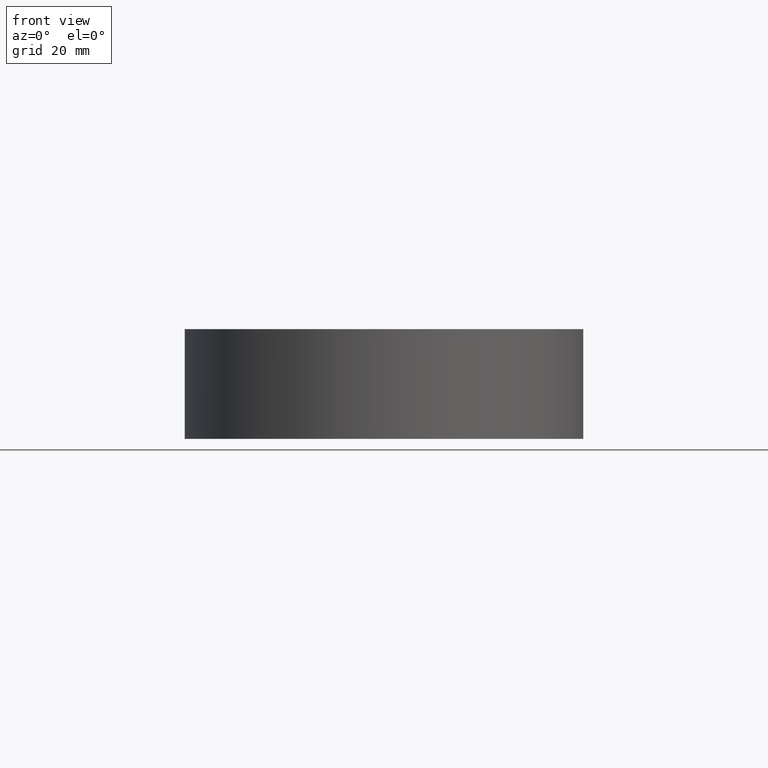
[diagram: clean part render]
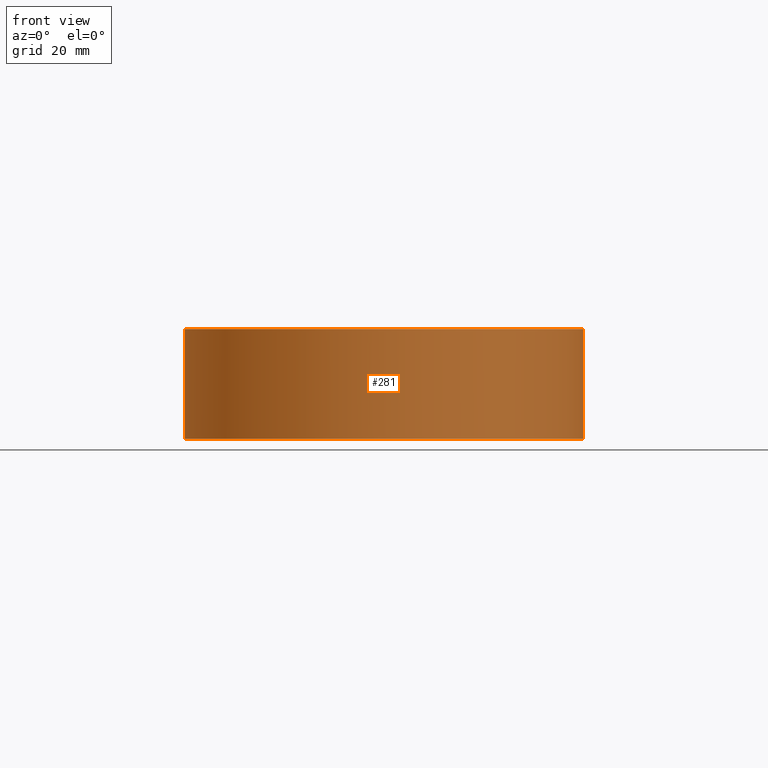
[diagram: same view with one face highlighted and labeled with its STEP entity id]
A machine part, front view. The second image highlights one B-rep face of the part: STEP entity #281.
In plain terms, the highlighted cylindrical surface (partial cylindrical patch) has radius 58.15 mm, axis along (0, 0, -1).
Its self-contained STEP definition (entity closure, byte-faithful):
#281 = ADVANCED_FACE( '', ( #416 ), #417, .T. );
#416 = FACE_OUTER_BOUND( '', #672, .T. );
#417 = CYLINDRICAL_SURFACE( '', #673, 58.1500000000000 );
#672 = EDGE_LOOP( '', ( #1016, #1017, #1018, #1019 ) );
#673 = AXIS2_PLACEMENT_3D( '', #1020, #1021, #1022 );
#1016 = ORIENTED_EDGE( '', *, *, #1866, .F. );
#1017 = ORIENTED_EDGE( '', *, *, #1871, .F. );
#1018 = ORIENTED_EDGE( '', *, *, #1832, .T. );
#1019 = ORIENTED_EDGE( '', *, *, #1872, .T. );
#1020 = CARTESIAN_POINT( '', ( 0.000000000000000, 0.000000000000000, -16.0000000000000 ) );
#1021 = DIRECTION( '', ( 0.000000000000000, 0.000000000000000, -1.00000000000000 ) );
#1022 = DIRECTION( '', ( -1.00000000000000, 6.06692130572647E-017, 0.000000000000000 ) );
#1832 = EDGE_CURVE( '', #2136, #2134, #2137, .T. );
#1866 = EDGE_CURVE( '', #2191, #2193, #2194, .T. );
#1871 = EDGE_CURVE( '', #2136, #2191, #2200, .T. );
#1872 = EDGE_CURVE( '', #2134, #2193, #2201, .T. );
#2134 = VERTEX_POINT( '', #2633 );
#2136 = VERTEX_POINT( '', #2635 );
#2137 = CIRCLE( '', #2636, 58.1500000000000 );
#2191 = VERTEX_POINT( '', #2711 );
#2193 = VERTEX_POINT( '', #2713 );
#2194 = CIRCLE( '', #2714, 58.1500000000000 );
#2200 = LINE( '', #2721, #2722 );
#2201 = LINE( '', #2723, #2724 );
#2633 = CARTESIAN_POINT( '', ( 6.39010989010989, 57.7978286408090, -16.0000000000000 ) );
#2635 = CARTESIAN_POINT( '', ( -6.39010989010987, 57.7978286408090, -16.0000000000000 ) );
#2636 = AXIS2_PLACEMENT_3D( '', #3413, #3414, #3415 );
#2711 = CARTESIAN_POINT( '', ( -6.39010989010989, 57.7978286408090, 16.0000000000000 ) );
#2713 = CARTESIAN_POINT( '', ( 6.39010989010989, 57.7978286408090, 16.0000000000000 ) );
#2714 = AXIS2_PLACEMENT_3D( '', #3473, #3474, #3475 );
#2721 = CARTESIAN_POINT( '', ( -6.39010989010989, 57.7978286408090, -16.0000000000000 ) );
#2722 = VECTOR( '', #3486, 1000.00000000000 );
#2723 = CARTESIAN_POINT( '', ( 6.39010989010989, 57.7978286408090, -16.0000000000000 ) );
#2724 = VECTOR( '', #3487, 1000.00000000000 );
#3413 = CARTESIAN_POINT( '', ( 0.000000000000000, 0.000000000000000, -16.0000000000000 ) );
#3414 = DIRECTION( '', ( 0.000000000000000, 0.000000000000000, 1.00000000000000 ) );
#3415 = DIRECTION( '', ( 1.00000000000000, 0.000000000000000, 0.000000000000000 ) );
#3473 = CARTESIAN_POINT( '', ( 0.000000000000000, 0.000000000000000, 16.0000000000000 ) );
#3474 = DIRECTION( '', ( 0.000000000000000, 0.000000000000000, 1.00000000000000 ) );
#3475 = DIRECTION( '', ( 1.00000000000000, 0.000000000000000, 0.000000000000000 ) );
#3486 = DIRECTION( '', ( 0.000000000000000, 0.000000000000000, 1.00000000000000 ) );
#3487 = DIRECTION( '', ( 0.000000000000000, 0.000000000000000, 1.00000000000000 ) );